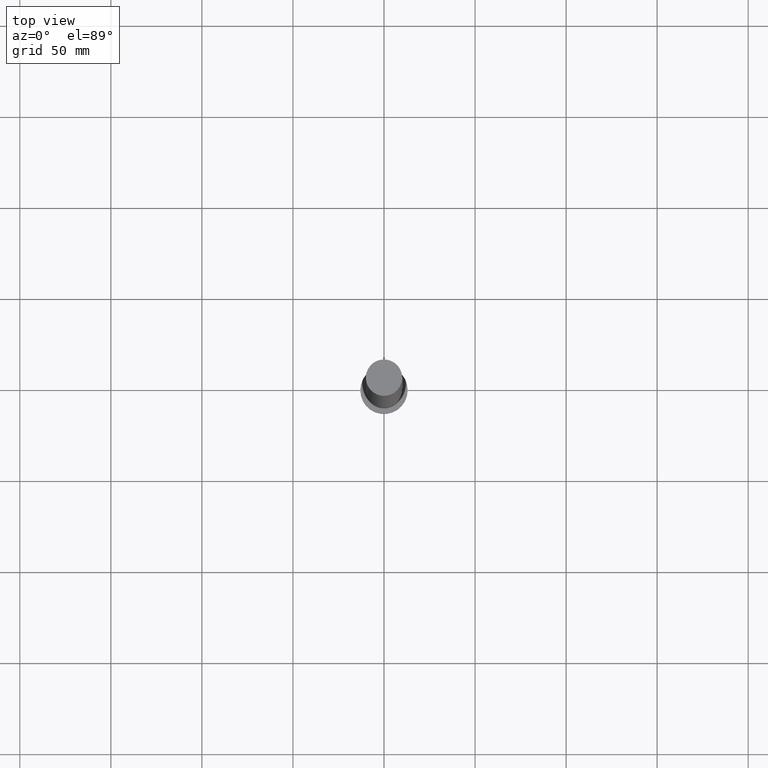
[diagram: clean part render]
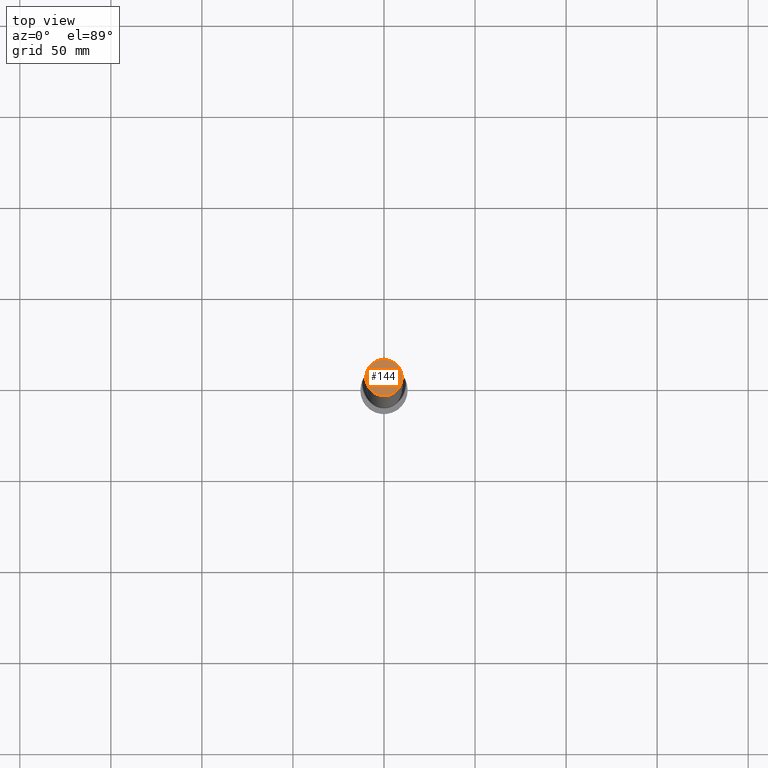
[diagram: same view with one face highlighted and labeled with its STEP entity id]
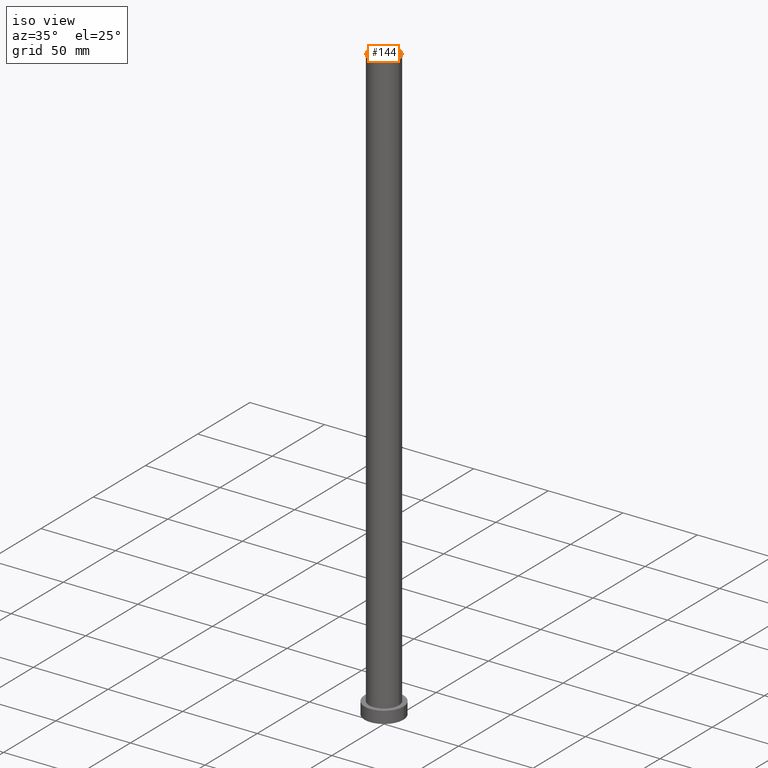
[diagram: same view with one face highlighted and labeled with its STEP entity id]
A machine part, top view. The second image highlights one B-rep face of the part: STEP entity #144.
A second angle (iso view) of the same face is appended — the face is thin or edge-on in the first view.
In plain terms, the highlighted planar face has unit normal (0, 0, 1).
Its self-contained STEP definition (entity closure, byte-faithful):
#38 = VERTEX_POINT ( 'NONE', #233 ) ;
#44 = CARTESIAN_POINT ( 'NONE',  ( 0.000000000000000000, 0.000000000000000000, 400.0000000000000000 ) ) ;
#49 = DIRECTION ( 'NONE',  ( 1.000000000000000000, 0.000000000000000000, -0.000000000000000000 ) ) ;
#53 = DIRECTION ( 'NONE',  ( 1.000000000000000000, 0.000000000000000000, 0.000000000000000000 ) ) ;
#72 = PLANE ( 'NONE',  #196 ) ;
#89 = DIRECTION ( 'NONE',  ( 1.000000000000000000, 0.000000000000000000, 0.000000000000000000 ) ) ;
#93 = CARTESIAN_POINT ( 'NONE',  ( -10.00000000000000000, 0.000000000000000000, 400.0000000000000000 ) ) ;
#106 = CIRCLE ( 'NONE', #241, 10.00000000000000000 ) ;
#116 = AXIS2_PLACEMENT_3D ( 'NONE', #243, #242, #89 ) ;
#129 = CIRCLE ( 'NONE', #116, 10.00000000000000000 ) ;
#131 = EDGE_CURVE ( 'NONE', #200, #38, #106, .T. ) ;
#144 = ADVANCED_FACE ( 'NONE', ( #225 ), #72, .T. ) ;
#172 = ORIENTED_EDGE ( 'NONE', *, *, #174, .T. ) ;
#174 = EDGE_CURVE ( 'NONE', #38, #200, #129, .T. ) ;
#196 = AXIS2_PLACEMENT_3D ( 'NONE', #208, #224, #49 ) ;
#200 = VERTEX_POINT ( 'NONE', #93 ) ;
#204 = DIRECTION ( 'NONE',  ( 0.000000000000000000, 0.000000000000000000, 1.000000000000000000 ) ) ;
#208 = CARTESIAN_POINT ( 'NONE',  ( 0.000000000000000000, 0.000000000000000000, 400.0000000000000000 ) ) ;
#224 = DIRECTION ( 'NONE',  ( 0.000000000000000000, 0.000000000000000000, 1.000000000000000000 ) ) ;
#225 = FACE_OUTER_BOUND ( 'NONE', #249, .T. ) ;
#230 = ORIENTED_EDGE ( 'NONE', *, *, #131, .T. ) ;
#233 = CARTESIAN_POINT ( 'NONE',  ( 10.00000000000000000, 1.224646799147353256E-15, 400.0000000000000000 ) ) ;
#241 = AXIS2_PLACEMENT_3D ( 'NONE', #44, #204, #53 ) ;
#242 = DIRECTION ( 'NONE',  ( 0.000000000000000000, 0.000000000000000000, 1.000000000000000000 ) ) ;
#243 = CARTESIAN_POINT ( 'NONE',  ( 0.000000000000000000, 0.000000000000000000, 400.0000000000000000 ) ) ;
#249 = EDGE_LOOP ( 'NONE', ( #230, #172 ) ) ;